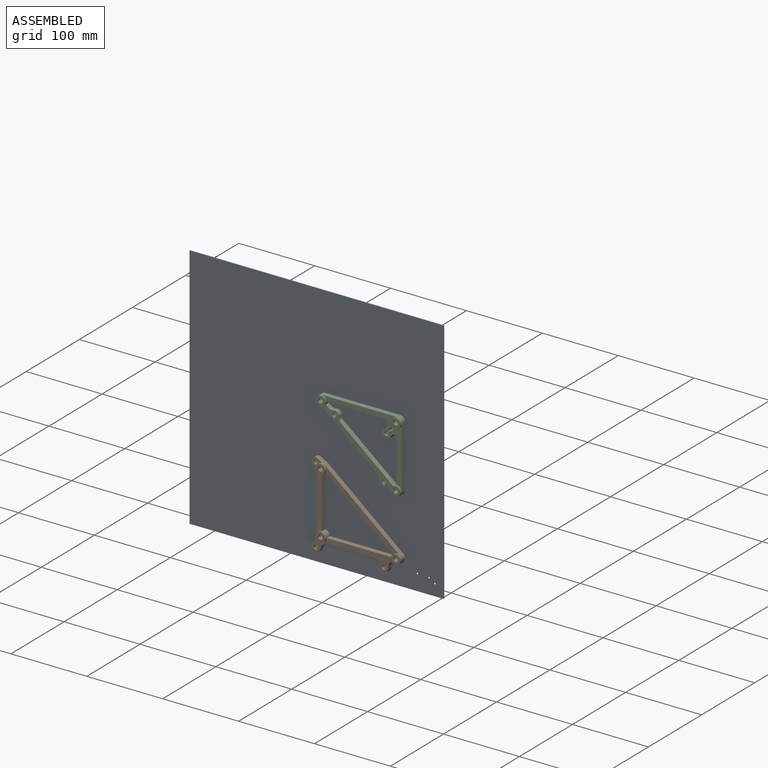
[diagram: assembled view]
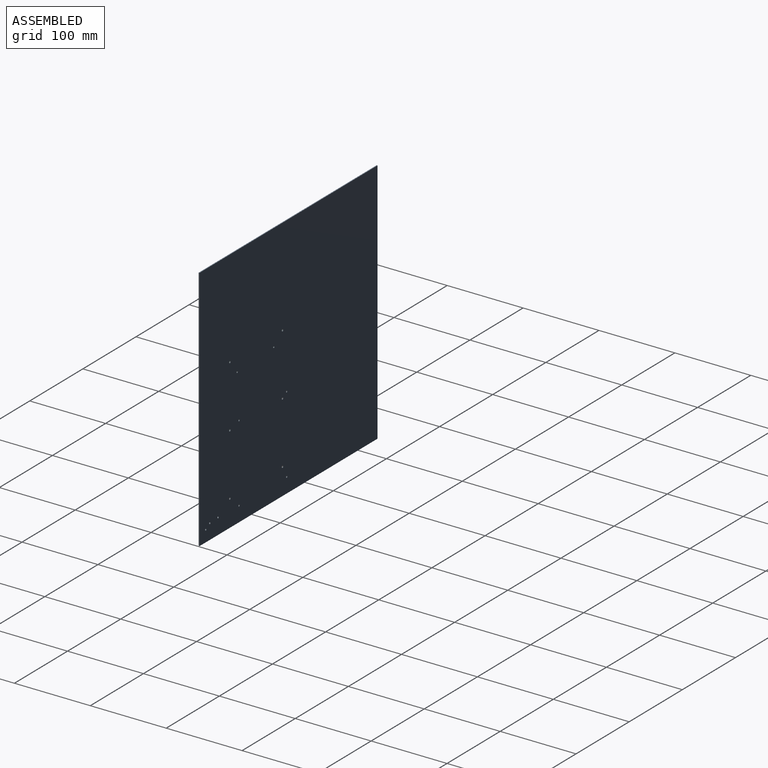
[diagram: assembled view, second angle]
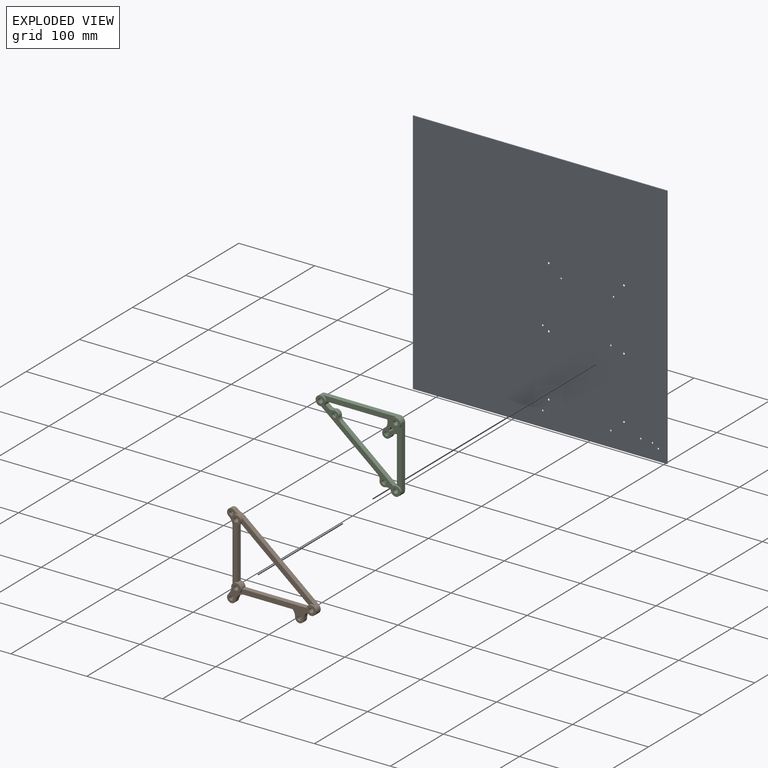
[diagram: exploded view]
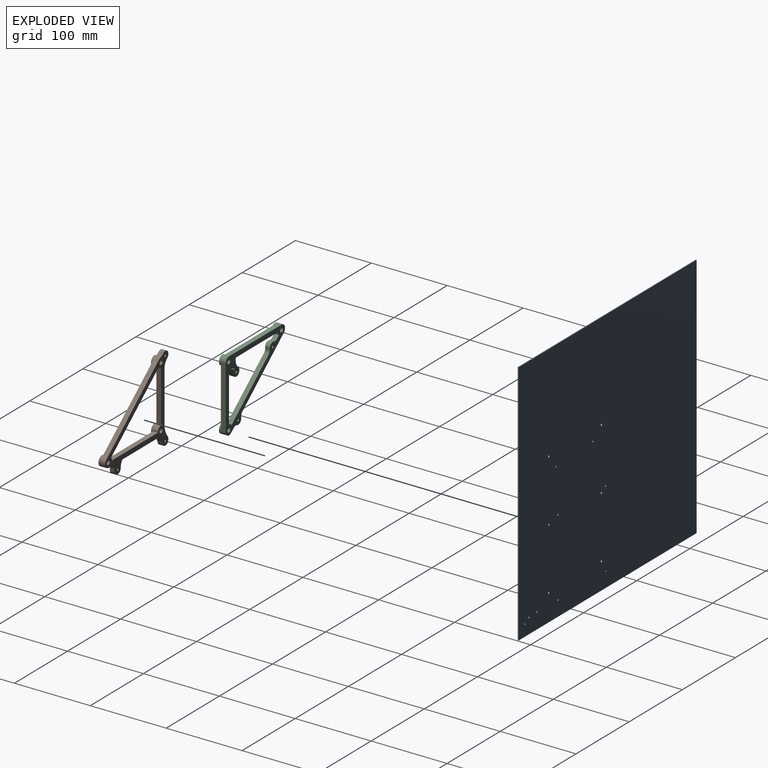
[diagram: exploded view, second angle]
ASSEMBLY  parts=3 mates=2
PART A: 21 faces, bbox 335x1.1x325.4 mm
  f0: plane 334.96x1.14mm, normal (0,0,-1), area 382.9mm2, adj f1,f3,f4,f5
  f1: plane 325.44x1.14mm, normal (1,0,0), area 372mm2, adj f0,f2,f4,f5
  f2: plane 334.96x1.14mm, normal (0,0,1), area 382.9mm2, adj f1,f3,f4,f5
  f3: plane 325.44x1.14mm, normal (-1,0,0), area 372mm2, adj f0,f2,f4,f5
  f4: plane 334.96x325.44mm, normal (0,1,0), area 108932.7mm2, adj f0,f1,f2,f3,f6,f7,f8,f9
  f5: plane 334.96x325.44mm, normal (0,-1,0), area 108932.7mm2, adj f0,f1,f2,f3,f6,f7,f8,f9
  f6: cylinder r=1.4mm len=2.79mm, axis (0,-1,0), area 10mm2, adj f4,f5
  f7: cylinder r=1.4mm len=2.79mm, axis (0,-1,0), area 10mm2, adj f4,f5
  f8: cylinder r=1.4mm len=2.79mm, axis (0,-1,0), area 10mm2, adj f4,f5
  f9: cylinder r=1.4mm len=2.79mm, axis (0,-1,0), area 10mm2, adj f4,f5
  f10: cylinder r=1.4mm len=2.79mm, axis (0,-1,0), area 10mm2, adj f4,f5
  f11: cylinder r=1.4mm len=2.79mm, axis (0,-1,0), area 10mm2, adj f4,f5
  f12: cylinder r=1.19mm len=2.38mm, axis (0,-1,0), area 8.5mm2, adj f4,f5
  f13: cylinder r=1.19mm len=2.38mm, axis (0,-1,0), area 8.5mm2, adj f4,f5
  f14: cylinder r=1.19mm len=2.38mm, axis (0,-1,0), area 8.5mm2, adj f4,f5
  f15: cylinder r=1.19mm len=2.38mm, axis (0,-1,0), area 8.5mm2, adj f4,f5
  f16: cylinder r=1.19mm len=2.38mm, axis (0,-1,0), area 8.5mm2, adj f4,f5
  f17: cylinder r=1.19mm len=2.38mm, axis (0,-1,0), area 8.5mm2, adj f4,f5
  f18: cylinder r=1.19mm len=2.38mm, axis (0,-1,0), area 8.5mm2, adj f4,f5
  f19: cylinder r=1.19mm len=2.38mm, axis (0,-1,0), area 8.5mm2, adj f4,f5
  f20: cylinder r=1.19mm len=2.38mm, axis (0,-1,0), area 8.5mm2, adj f4,f5
PART B: 40 faces, bbox 119x8.9x112.9 mm
  f0: plane 65.28x6.35mm, normal (0,0,-1), area 414.5mm2, adj f10,f11,f19,f23
  f1: cylinder r=6.35mm len=12.7mm, axis (0,1,0), area 175.4mm2, adj f5,f7,f10,f11,f13,f18,f22
  f2: plane 68.7x6.35mm, normal (-1,0,0), area 436.3mm2, adj f10,f11,f21,f27
  f3: cylinder r=6.35mm len=12.7mm, axis (0,1,0), area 228mm2, adj f6,f7,f8,f9,f10,f11,f12,f15
  f4: cylinder r=6.35mm len=12.7mm, axis (0,1,0), area 153.9mm2, adj f5,f6,f9,f10,f11,f12,f14,f26
  f5: plane 68.58x6.35mm, normal (1,0,0), area 435.5mm2, adj f1,f4,f10,f11
  f6: plane 89.24x73.22mm, normal (-0.63,0,-0.77), area 733mm2, adj f3,f4,f10,f12
  f7: plane 86.36x6.35mm, normal (0,0,1), area 548.4mm2, adj f1,f3,f10,f11
  f8: plane 8.38x6.35mm, normal (0,0,-1), area 53.2mm2, adj f3,f10,f11,f24
  f9: plane 99.06x81.28mm, normal (0.63,0,0.77), area 813.7mm2, adj f3,f4,f10,f12
  f10: plane 119x112.88mm, normal (0,1,0), area 2488.3mm2, adj f0,f1,f2,f3,f4,f5,f6,f7
  f11: plane 112.88x112.65mm, normal (0,-1,0), area 1390.7mm2, adj f0,f1,f2,f3,f4,f5,f7,f8
  f12: plane 99.06x82.16mm, normal (0,-1,0), area 750.3mm2, adj f3,f4,f6,f9
  f13: plane 12.7x12.7mm, normal (0,-1,0), area 99.9mm2, adj f1,f39
  f14: plane 12.7x12.7mm, normal (0,-1,0), area 99.9mm2, adj f4,f38
  f15: plane 12.7x12.7mm, normal (0,-1,0), area 99.9mm2, adj f3,f37
  f16: cylinder r=5.71mm len=10.26mm, axis (0,1,0), area 118.5mm2, adj f10,f11,f26,f27
  f17: cylinder r=8.89mm len=6.35mm, axis (0,1,0), area 4.9mm2, adj f10,f11,f18,f22
  f18: cylinder r=17.48mm len=6.35mm, axis (0,1,0), area 17.3mm2, adj f1,f10,f11,f17
  f19: cylinder r=12.7mm len=9.91mm, axis (0,1,0), area 93.6mm2, adj f0,f10,f11,f20
  f20: cylinder r=5.71mm len=11.3mm, axis (0,1,0), area 131.7mm2, adj f10,f11,f19,f21
  f21: cylinder r=25.4mm len=14.43mm, axis (0,1,0), area 100.6mm2, adj f2,f10,f11,f20
  f22: cylinder r=30.18mm len=6.35mm, axis (0,1,0), area 16.3mm2, adj f1,f10,f11,f17
  f23: cylinder r=12.7mm len=8.53mm, axis (0,1,0), area 59.1mm2, adj f0,f10,f11,f25
  f24: cylinder r=12.7mm len=8.53mm, axis (0,1,0), area 59.1mm2, adj f8,f10,f11,f25
  f25: cylinder r=5.71mm len=11.43mm, axis (0,1,0), area 114.7mm2, adj f10,f11,f23,f24
  f26: cylinder r=12.7mm len=6.35mm, axis (0,1,0), area 41.1mm2, adj f4,f10,f11,f16
  f27: cylinder r=12.7mm len=10.09mm, axis (0,1,0), area 74.1mm2, adj f2,f10,f11,f16
  f28: cylinder r=1.63mm len=3.51mm, axis (0,-1,0), area 35.9mm2, adj f10,f29
  f29: plane 5.56x5.56mm, normal (0,-1,0), area 15.9mm2, adj f28,f30
  f30: cylinder r=2.78mm len=5.56mm, axis (0,-1,0), area 49.7mm2, adj f11,f29
  f31: cylinder r=1.63mm len=3.51mm, axis (0,-1,0), area 35.9mm2, adj f10,f32
  f32: plane 5.56x5.56mm, normal (0,-1,0), area 15.9mm2, adj f31,f33
  f33: cylinder r=2.78mm len=5.56mm, axis (0,-1,0), area 49.7mm2, adj f11,f32
  f34: cylinder r=1.63mm len=3.51mm, axis (0,-1,0), area 35.9mm2, adj f10,f35
  f35: plane 5.56x5.56mm, normal (0,-1,0), area 15.9mm2, adj f34,f36
  f36: cylinder r=2.78mm len=5.56mm, axis (0,-1,0), area 49.7mm2, adj f11,f35
  f37: cylinder r=2.92mm len=8.89mm, axis (0,1,0), area 163.2mm2, adj f10,f15
  f38: cylinder r=2.92mm len=8.89mm, axis (0,1,0), area 163.2mm2, adj f10,f14
  f39: cylinder r=2.92mm len=8.89mm, axis (0,1,0), area 163.2mm2, adj f10,f13
PART C: 42 faces, bbox 111.8x8.9x94 mm
  f0: plane 77.99x63.99mm, normal (-0.63,0,-0.77), area 640.6mm2, adj f3,f11,f13,f26
  f1: plane 6.35x3.84mm, normal (0.63,0,0.77), area 31.5mm2, adj f3,f11,f13,f29
  f2: plane 60.96x6.35mm, normal (-1,0,0), area 387.1mm2, adj f4,f11,f12,f21
  f3: cylinder r=6.35mm len=12.7mm, axis (0,1,0), area 228mm2, adj f0,f1,f7,f9,f11,f12,f13,f16
  f4: cylinder r=6.35mm len=12.7mm, axis (0,1,0), area 228mm2, adj f2,f6,f8,f10,f11,f12,f13,f15
  f5: cylinder r=6.35mm len=12.7mm, axis (0,1,0), area 164.7mm2, adj f8,f9,f11,f12,f14
  f6: plane 69.69x57.18mm, normal (0.63,0,0.77), area 572.4mm2, adj f4,f11,f13,f28
  f7: plane 80.01x6.35mm, normal (0,0,-1), area 508.1mm2, adj f3,f11,f12,f20
  f8: plane 81.28x6.35mm, normal (1,0,0), area 516.1mm2, adj f4,f5,f11,f12
  f9: plane 99.06x6.35mm, normal (0,0,1), area 629mm2, adj f3,f5,f11,f12
  f10: plane 6.35x4.71mm, normal (-0.63,0,-0.77), area 38.6mm2, adj f4,f11,f13,f27
  f11: plane 111.76x93.98mm, normal (0,1,0), area 2414.7mm2, adj f0,f1,f2,f3,f4,f5,f6,f7
  f12: plane 105.41x87.63mm, normal (0,-1,0), area 1245.3mm2, adj f2,f3,f4,f5,f7,f8,f9,f17
  f13: plane 99.06x82.16mm, normal (0,-1,0), area 822.1mm2, adj f0,f1,f3,f4,f6,f10,f24,f25
  f14: plane 12.7x12.7mm, normal (0,-1,0), area 99.9mm2, adj f5,f41
  f15: plane 12.7x12.7mm, normal (0,-1,0), area 99.9mm2, adj f4,f40
  f16: plane 12.7x12.7mm, normal (0,-1,0), area 99.9mm2, adj f3,f39
  f17: cylinder r=17.48mm len=6.35mm, axis (0,1,0), area 35.7mm2, adj f11,f12,f18,f23
  f18: cylinder r=5.71mm len=6.35mm, axis (0,1,0), area 9.3mm2, adj f11,f12,f17,f19
  f19: cylinder r=17.48mm len=6.35mm, axis (0,1,0), area 39.1mm2, adj f11,f12,f18,f23
  f20: cylinder r=12.7mm len=12.79mm, axis (0,1,0), area 91mm2, adj f7,f11,f12,f22
  f21: cylinder r=12.7mm len=8.81mm, axis (0,1,0), area 70.6mm2, adj f2,f11,f12,f22
  f22: cylinder r=5.71mm len=10.67mm, axis (0,1,0), area 128mm2, adj f11,f12,f20,f21
  f23: cylinder r=11.13mm len=6.35mm, axis (0,1,0), area 31mm2, adj f11,f12,f17,f19
  f24: cylinder r=5.71mm len=7.48mm, axis (0,1,0), area 72.7mm2, adj f11,f13,f28,f29
  f25: cylinder r=5.71mm len=7.85mm, axis (0,1,0), area 77.7mm2, adj f11,f13,f26,f27
  f26: cylinder r=6.35mm len=6.35mm, axis (0,1,0), area 43.2mm2, adj f0,f11,f13,f25
  f27: cylinder r=6.35mm len=6.4mm, axis (0,1,0), area 43.2mm2, adj f10,f11,f13,f25
  f28: cylinder r=6.35mm len=6.35mm, axis (0,1,0), area 40.4mm2, adj f6,f11,f13,f24
  f29: cylinder r=6.35mm len=6.35mm, axis (0,1,0), area 40.4mm2, adj f1,f11,f13,f24
  f30: cylinder r=1.63mm len=3.51mm, axis (0,-1,0), area 35.9mm2, adj f11,f31
  f31: plane 5.56x5.56mm, normal (0,-1,0), area 15.9mm2, adj f30,f32
  f32: cylinder r=2.78mm len=5.56mm, axis (0,-1,0), area 49.7mm2, adj f13,f31
  f33: cylinder r=1.63mm len=3.51mm, axis (0,-1,0), area 35.9mm2, adj f11,f34
  f34: plane 5.56x5.56mm, normal (0,-1,0), area 15.9mm2, adj f33,f35
  f35: cylinder r=2.78mm len=5.56mm, axis (0,-1,0), area 49.7mm2, adj f13,f34
  f36: cylinder r=1.63mm len=3.51mm, axis (0,-1,0), area 35.9mm2, adj f11,f37
  f37: plane 5.56x5.56mm, normal (0,-1,0), area 15.9mm2, adj f36,f38
  f38: cylinder r=2.78mm len=5.56mm, axis (0,-1,0), area 49.7mm2, adj f12,f37
  f39: cylinder r=2.92mm len=8.89mm, axis (0,1,0), area 163.2mm2, adj f11,f16
  f40: cylinder r=2.92mm len=8.89mm, axis (0,1,0), area 163.2mm2, adj f11,f15
  f41: cylinder r=2.92mm len=8.89mm, axis (0,1,0), area 163.2mm2, adj f11,f14
PLACE A t=(-89.1,-29.62,15.92)mm
PLACE B t=(255.66,-29.62,738.25)mm
PLACE C t=(257.94,-29.62,747.14)mm
MATE fastened B.f1 <-> A.f6  axis (0,1,0) through (-245.31,-29.62,50.84)mm
MATE fastened C.f5 <-> A.f8  axis (0,1,0) through (-146.25,-29.62,213.4)mm
